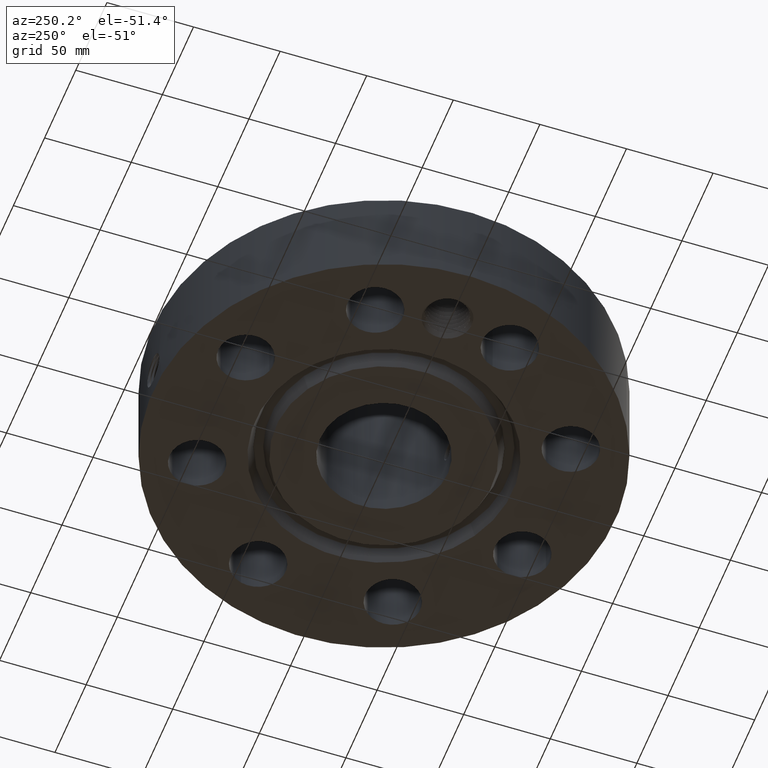
[diagram: clean part render]
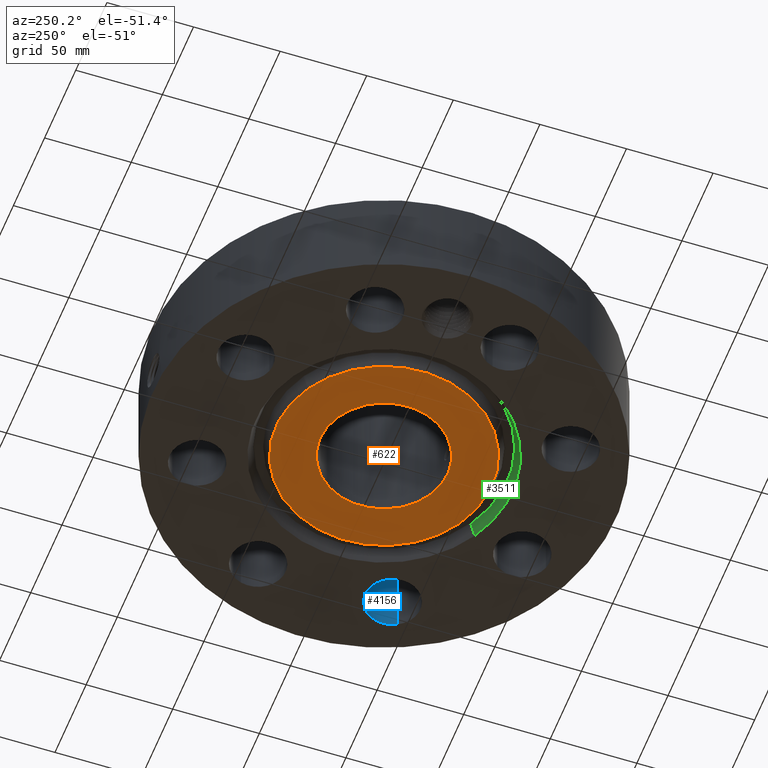
[diagram: same view with three faces highlighted in distinct colors, each labeled with its STEP entity id]
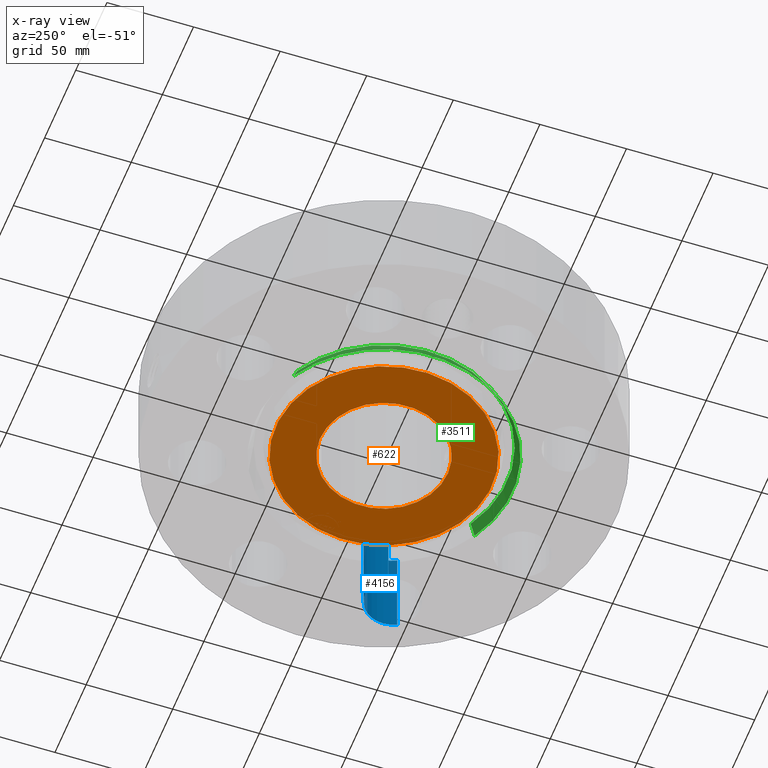
[diagram: x-ray of the same camera — body ghosted, the three highlighted faces saturated]
A machine part, auxiliary view with three faces highlighted in distinct colors.
The next image is the same camera in x-ray (body ghosted, the three faces saturated) — at least one of them is partly hidden behind the body in this view.
Their STEP definitions:

[orange] entity #622 — the highlighted planar face has unit normal (0, 0, -1).
#252=AXIS2_PLACEMENT_3D('Circle Axis2P3D',#250,#251,$) ;
#543=AXIS2_PLACEMENT_3D('Circle Axis2P3D',#541,#542,$) ;
#598=AXIS2_PLACEMENT_3D('Plane Axis2P3D',#595,#596,#597) ;
#602=AXIS2_PLACEMENT_3D('Circle Axis2P3D',#600,#601,$) ;
#611=AXIS2_PLACEMENT_3D('Circle Axis2P3D',#609,#610,$) ;
#247=CARTESIAN_POINT('Vertex',(0.695167030979,1.27249471475,-7.55301333288E-015)) ;
#250=CARTESIAN_POINT('Axis2P3D Location',(0.,0.,-7.83275456743E-015)) ;
#254=CARTESIAN_POINT('Vertex',(-0.695167030979,-1.27249471475,-7.55301333288E-015)) ;
#541=CARTESIAN_POINT('Axis2P3D Location',(0.,0.,-7.83275456743E-015)) ;
#595=CARTESIAN_POINT('Axis2P3D Location',(0.,1.45000000001,0.)) ;
#600=CARTESIAN_POINT('Axis2P3D Location',(1.39870617276E-015,-2.79741234551E-016,0.)) ;
#604=CARTESIAN_POINT('Vertex',(-1.1760308462,2.15271002433,-3.49676543189E-017)) ;
#606=CARTESIAN_POINT('Vertex',(1.1760308462,-2.15271002433,6.11933950581E-017)) ;
#609=CARTESIAN_POINT('Axis2P3D Location',(8.39223703654E-016,0.,0.)) ;
#251=DIRECTION('Axis2P3D Direction',(0.,0.,-0.0393700787402)) ;
#542=DIRECTION('Axis2P3D Direction',(0.,0.,-0.0393700787402)) ;
#596=DIRECTION('Axis2P3D Direction',(0.,0.,-0.0393700787402)) ;
#597=DIRECTION('Axis2P3D XDirection',(0.0393700787402,0.,0.)) ;
#601=DIRECTION('Axis2P3D Direction',(0.,0.,-0.0393700787402)) ;
#610=DIRECTION('Axis2P3D Direction',(0.,0.,-0.0393700787402)) ;
#615=ORIENTED_EDGE('',*,*,#608,.T.) ;
#616=ORIENTED_EDGE('',*,*,#613,.T.) ;
#619=ORIENTED_EDGE('',*,*,#256,.F.) ;
#620=ORIENTED_EDGE('',*,*,#545,.F.) ;
#621=FACE_BOUND('',#618,.T.) ;
#622=ADVANCED_FACE('PartBody',(#617,#621),#599,.T.) ;
#253=CIRCLE('generated circle',#252,1.45000000001) ;
#544=CIRCLE('generated circle',#543,1.45000000001) ;
#603=CIRCLE('generated circle',#602,2.45300000001) ;
#612=CIRCLE('generated circle',#611,2.45300000001) ;
#256=EDGE_CURVE('',#248,#255,#253,.T.) ;
#545=EDGE_CURVE('',#255,#248,#544,.T.) ;
#608=EDGE_CURVE('',#605,#607,#603,.T.) ;
#613=EDGE_CURVE('',#607,#605,#612,.T.) ;
#614=EDGE_LOOP('',(#615,#616)) ;
#618=EDGE_LOOP('',(#619,#620)) ;
#617=FACE_OUTER_BOUND('',#614,.T.) ;
#599=PLANE('',#598) ;
#248=VERTEX_POINT('',#247) ;
#255=VERTEX_POINT('',#254) ;
#605=VERTEX_POINT('',#604) ;
#607=VERTEX_POINT('',#606) ;

[blue] entity #4156 — the highlighted cylindrical surface (edge-blend (fillet) strip) has radius 15.875 mm, axis along (0, -0, -1).
#2990=AXIS2_PLACEMENT_3D('Circle Axis2P3D',#2988,#2989,$) ;
#4117=AXIS2_PLACEMENT_3D('Cylinder Axis2P3D',#4114,#4115,#4116) ;
#4147=AXIS2_PLACEMENT_3D('Circle Axis2P3D',#4145,#4146,$) ;
#2988=CARTESIAN_POINT('Axis2P3D Location',(3.69551813006,-1.53073372947,2.19200000001)) ;
#2992=CARTESIAN_POINT('Vertex',(3.14702902888,-1.23109276784,2.19200000001)) ;
#2994=CARTESIAN_POINT('Vertex',(4.24400723124,-1.8303746911,2.19200000001)) ;
#4114=CARTESIAN_POINT('Axis2P3D Location',(3.69551813006,-1.53073372947,2.18806299213)) ;
#4119=CARTESIAN_POINT('Line Origine',(4.24400723124,-1.8303746911,1.096)) ;
#4123=CARTESIAN_POINT('Vertex',(4.24400723124,-1.8303746911,0.)) ;
#4130=CARTESIAN_POINT('Vertex',(3.14702902888,-1.23109276784,0.)) ;
#4133=CARTESIAN_POINT('Line Origine',(3.14702902888,-1.23109276784,1.096)) ;
#4145=CARTESIAN_POINT('Axis2P3D Location',(3.69551813006,-1.53073372947,0.)) ;
#2989=DIRECTION('Axis2P3D Direction',(0.,0.,-0.0393700787402)) ;
#4115=DIRECTION('Axis2P3D Direction',(0.,-0.,-0.0393700787402)) ;
#4116=DIRECTION('Axis2P3D XDirection',(-0.0345504945626,0.0188750212049,0.)) ;
#4120=DIRECTION('Vector Direction',(0.,0.,-0.0393700787402)) ;
#4134=DIRECTION('Vector Direction',(0.,0.,-0.0393700787402)) ;
#4146=DIRECTION('Axis2P3D Direction',(0.,-0.,-0.0393700787402)) ;
#4121=VECTOR('Line Direction',#4120,0.0393700787402) ;
#4135=VECTOR('Line Direction',#4134,0.0393700787402) ;
#4151=ORIENTED_EDGE('',*,*,#4137,.F.) ;
#4152=ORIENTED_EDGE('',*,*,#4149,.T.) ;
#4153=ORIENTED_EDGE('',*,*,#4125,.T.) ;
#4154=ORIENTED_EDGE('',*,*,#2996,.F.) ;
#4156=ADVANCED_FACE('PartBody',(#4155),#4118,.F.) ;
#2991=CIRCLE('generated circle',#2990,0.625000000002) ;
#4148=CIRCLE('generated circle',#4147,0.625000000002) ;
#4118=CYLINDRICAL_SURFACE('generated cylinder',#4117,0.625000000002) ;
#2996=EDGE_CURVE('',#2993,#2995,#2991,.T.) ;
#4125=EDGE_CURVE('',#4124,#2995,#4122,.F.) ;
#4137=EDGE_CURVE('',#4131,#2993,#4136,.F.) ;
#4149=EDGE_CURVE('',#4131,#4124,#4148,.T.) ;
#4150=EDGE_LOOP('',(#4151,#4152,#4153,#4154)) ;
#4155=FACE_OUTER_BOUND('',#4150,.T.) ;
#4122=LINE('Line',#4119,#4121) ;
#4136=LINE('Line',#4133,#4135) ;
#2993=VERTEX_POINT('',#2992) ;
#2995=VERTEX_POINT('',#2994) ;
#4124=VERTEX_POINT('',#4123) ;
#4131=VERTEX_POINT('',#4130) ;

[green] entity #3511 — the highlighted conical surface has half-angle 23 deg.
#2635=AXIS2_PLACEMENT_3D('Circle Axis2P3D',#2633,#2634,$) ;
#3472=AXIS2_PLACEMENT_3D('Cone Axis2P3D',#3469,#3470,#3471) ;
#3502=AXIS2_PLACEMENT_3D('Circle Axis2P3D',#3500,#3501,$) ;
#2611=CARTESIAN_POINT('Vertex',(1.34110781559,-2.45488138992,0.293721933856)) ;
#2613=CARTESIAN_POINT('Vertex',(-1.34110781559,2.45488138992,0.293721933856)) ;
#2633=CARTESIAN_POINT('Axis2P3D Location',(0.,0.,0.293721933856)) ;
#3469=CARTESIAN_POINT('Axis2P3D Location',(0.,0.,0.293721933856)) ;
#3478=CARTESIAN_POINT('Vertex',(-1.40088142381,2.56429624585,3.49676543189E-017)) ;
#3480=CARTESIAN_POINT('Vertex',(1.40088142381,-2.56429624585,3.49676543189E-017)) ;
#3483=CARTESIAN_POINT('Line Origine',(1.3709946197,-2.50958881789,0.146860966928)) ;
#3488=CARTESIAN_POINT('Line Origine',(-1.3709946197,2.50958881789,0.146860966928)) ;
#3500=CARTESIAN_POINT('Axis2P3D Location',(0.,0.,3.49676543189E-017)) ;
#2634=DIRECTION('Axis2P3D Direction',(0.,0.,0.0393700787402)) ;
#3470=DIRECTION('Axis2P3D Direction',(-0.,-0.,-0.0393700787402)) ;
#3471=DIRECTION('Axis2P3D XDirection',(0.0188750212049,-0.0345504945626,0.)) ;
#3484=DIRECTION('Vector Direction',(0.00737505833565,-0.0134999537303,-0.0362403485611)) ;
#3489=DIRECTION('Vector Direction',(-0.00737505833565,0.0134999537303,-0.0362403485611)) ;
#3501=DIRECTION('Axis2P3D Direction',(0.,0.,-0.0393700787402)) ;
#3485=VECTOR('Line Direction',#3484,0.0393700787402) ;
#3490=VECTOR('Line Direction',#3489,0.0393700787402) ;
#3506=ORIENTED_EDGE('',*,*,#3504,.T.) ;
#3507=ORIENTED_EDGE('',*,*,#3492,.T.) ;
#3508=ORIENTED_EDGE('',*,*,#2637,.T.) ;
#3509=ORIENTED_EDGE('',*,*,#3487,.F.) ;
#3511=ADVANCED_FACE('PartBody',(#3510),#3473,.F.) ;
#2636=CIRCLE('generated circle',#2635,2.79732243612) ;
#3503=CIRCLE('generated circle',#3502,2.92200000001) ;
#3473=CONICAL_SURFACE('Cone',#3472,2.79732243612,0.401425727959) ;
#2637=EDGE_CURVE('',#2614,#2612,#2636,.T.) ;
#3487=EDGE_CURVE('',#3481,#2612,#3486,.F.) ;
#3492=EDGE_CURVE('',#3479,#2614,#3491,.F.) ;
#3504=EDGE_CURVE('',#3481,#3479,#3503,.T.) ;
#3505=EDGE_LOOP('',(#3506,#3507,#3508,#3509)) ;
#3510=FACE_OUTER_BOUND('',#3505,.T.) ;
#3486=LINE('Line',#3483,#3485) ;
#3491=LINE('Line',#3488,#3490) ;
#2612=VERTEX_POINT('',#2611) ;
#2614=VERTEX_POINT('',#2613) ;
#3479=VERTEX_POINT('',#3478) ;
#3481=VERTEX_POINT('',#3480) ;